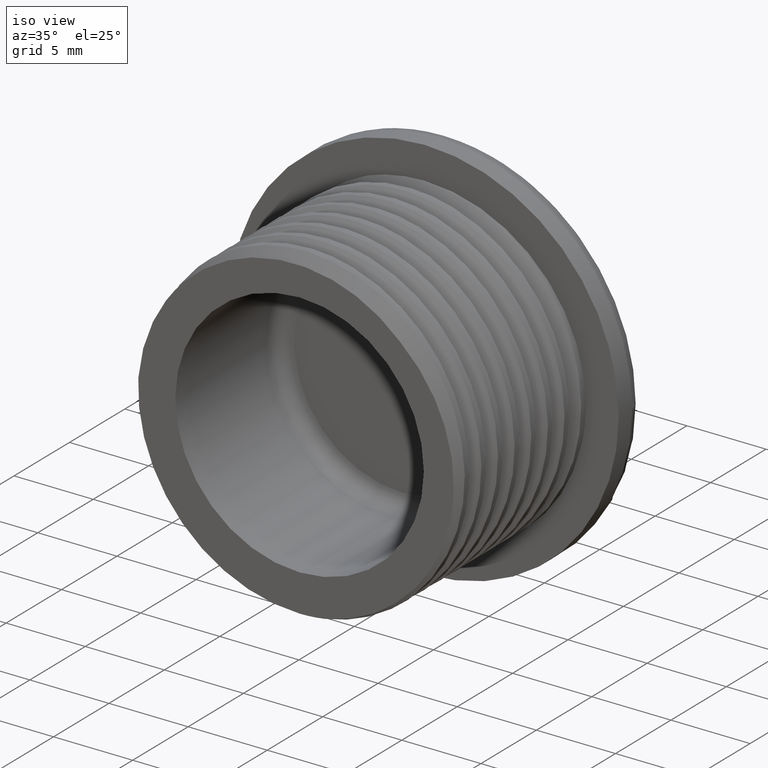
[diagram: clean part render]
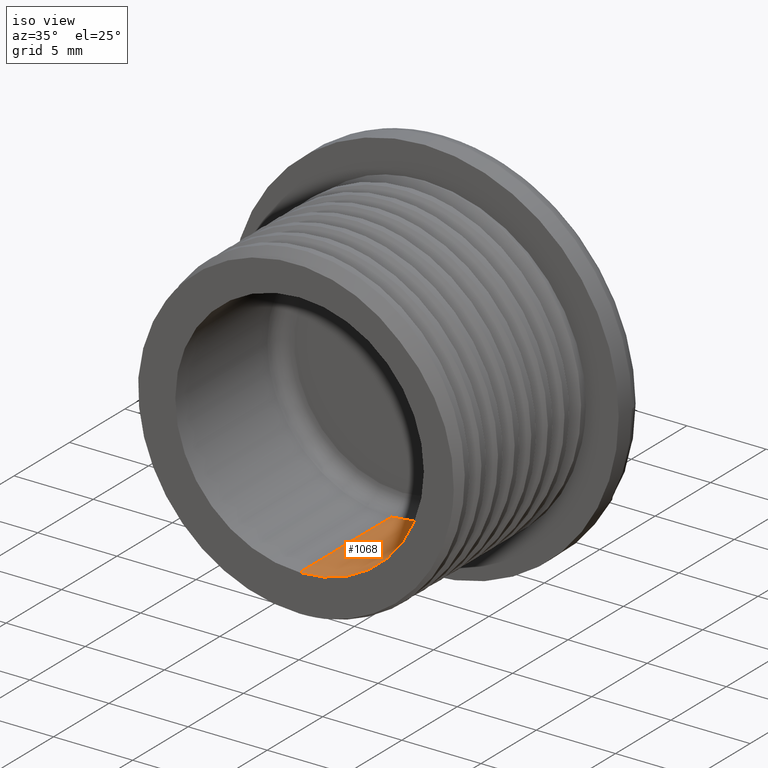
[diagram: same view with one face highlighted and labeled with its STEP entity id]
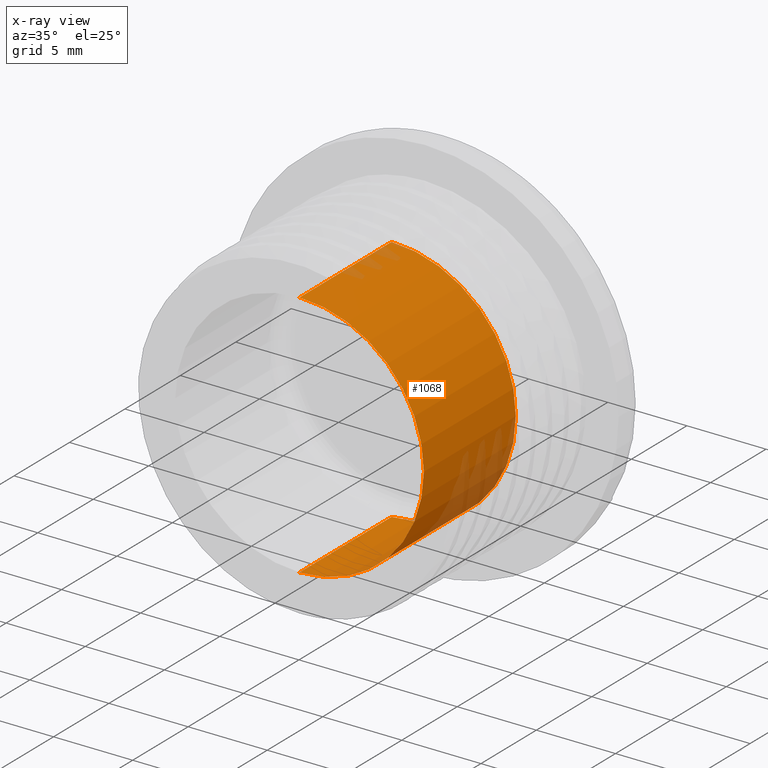
[diagram: x-ray of the same camera — body ghosted, the highlighted face saturated]
A machine part, iso view. The second image highlights one B-rep face of the part: STEP entity #1068.
The next image is the same camera in x-ray: the body ghosted, the highlighted face saturated — about 10% of this face is hidden behind the body in this view.
In plain terms, the highlighted cylindrical surface (partial cylindrical patch) has radius 7.85 mm, axis along (-0, -1, -0).
Its self-contained STEP definition (entity closure, byte-faithful):
#403 = EDGE_LOOP ( 'NONE', ( #901, #891, #899, #909 ) ) ;
#410 = VERTEX_POINT ( 'NONE', #460 ) ;
#422 = VERTEX_POINT ( 'NONE', #476 ) ;
#428 = VERTEX_POINT ( 'NONE', #472 ) ;
#448 = VERTEX_POINT ( 'NONE', #508 ) ;
#460 = CARTESIAN_POINT ( 'NONE',  ( 0.0000000000000000000, 0.05795425656142730300, -7.849999999999999600 ) ) ;
#472 = CARTESIAN_POINT ( 'NONE',  ( 9.613477373306721400E-016, 0.05795425656142730300, 7.849999999999999600 ) ) ;
#476 = CARTESIAN_POINT ( 'NONE',  ( 4.806738686653360700E-016, 8.357954256561420400, -7.849999999999999600 ) ) ;
#508 = CARTESIAN_POINT ( 'NONE',  ( 1.442021605996008100E-015, 8.357954256561420400, 7.849999999999999600 ) ) ;
#546 = CARTESIAN_POINT ( 'NONE',  ( 0.0000000000000000000, -0.1420457434385714900, -7.849999999999999600 ) ) ;
#547 = DIRECTION ( 'NONE',  ( -0.0000000000000000000, -1.000000000000000000, -0.0000000000000000000 ) ) ;
#549 = LINE ( 'NONE', #546, #2163 ) ;
#556 = DIRECTION ( 'NONE',  ( -0.0000000000000000000, -1.000000000000000000, -0.0000000000000000000 ) ) ;
#561 = CARTESIAN_POINT ( 'NONE',  ( 9.613477373306721400E-016, -0.1420457434385714900, 7.849999999999999600 ) ) ;
#563 = LINE ( 'NONE', #561, #2166 ) ;
#891 = ORIENTED_EDGE ( 'NONE', *, *, #1023, .F. ) ;
#899 = ORIENTED_EDGE ( 'NONE', *, *, #931, .T. ) ;
#901 = ORIENTED_EDGE ( 'NONE', *, *, #936, .F. ) ;
#909 = ORIENTED_EDGE ( 'NONE', *, *, #1015, .T. ) ;
#931 = EDGE_CURVE ( 'NONE', #422, #410, #549, .T. ) ;
#936 = EDGE_CURVE ( 'NONE', #448, #428, #563, .T. ) ;
#1015 = EDGE_CURVE ( 'NONE', #410, #428, #2234, .T. ) ;
#1023 = EDGE_CURVE ( 'NONE', #422, #448, #2224, .T. ) ;
#1068 = ADVANCED_FACE ( 'NONE', ( #1475 ), #1447, .F. ) ;
#1447 = CYLINDRICAL_SURFACE ( 'NONE', #2256, 7.849999999999999600 ) ;
#1452 = CARTESIAN_POINT ( 'NONE',  ( 0.0000000000000000000, -0.1420457434385714900, 0.0000000000000000000 ) ) ;
#1453 = DIRECTION ( 'NONE',  ( -0.0000000000000000000, -1.000000000000000000, -0.0000000000000000000 ) ) ;
#1457 = DIRECTION ( 'NONE',  ( 0.0000000000000000000, 0.0000000000000000000, -1.000000000000000000 ) ) ;
#1475 = FACE_OUTER_BOUND ( 'NONE', #403, .T. ) ;
#2163 = VECTOR ( 'NONE', #547, 1000.000000000000000 ) ;
#2166 = VECTOR ( 'NONE', #556, 1000.000000000000000 ) ;
#2224 = CIRCLE ( 'NONE', #2262, 7.849999999999999600 ) ;
#2234 = CIRCLE ( 'NONE', #2274, 7.849999999999999600 ) ;
#2256 = AXIS2_PLACEMENT_3D ( 'NONE', #1452, #1453, #1457 ) ;
#2262 = AXIS2_PLACEMENT_3D ( 'NONE', #2770, #2765, #2764 ) ;
#2274 = AXIS2_PLACEMENT_3D ( 'NONE', #2563, #2560, #2547 ) ;
#2547 = DIRECTION ( 'NONE',  ( 0.0000000000000000000, 0.0000000000000000000, 1.000000000000000000 ) ) ;
#2560 = DIRECTION ( 'NONE',  ( 0.0000000000000000000, -1.000000000000000000, -0.0000000000000000000 ) ) ;
#2563 = CARTESIAN_POINT ( 'NONE',  ( 0.0000000000000000000, 0.05795425656142730300, 0.0000000000000000000 ) ) ;
#2764 = DIRECTION ( 'NONE',  ( 0.0000000000000000000, 0.0000000000000000000, -1.000000000000000000 ) ) ;
#2765 = DIRECTION ( 'NONE',  ( -0.0000000000000000000, -1.000000000000000000, -0.0000000000000000000 ) ) ;
#2770 = CARTESIAN_POINT ( 'NONE',  ( 0.0000000000000000000, 8.357954256561420400, 0.0000000000000000000 ) ) ;